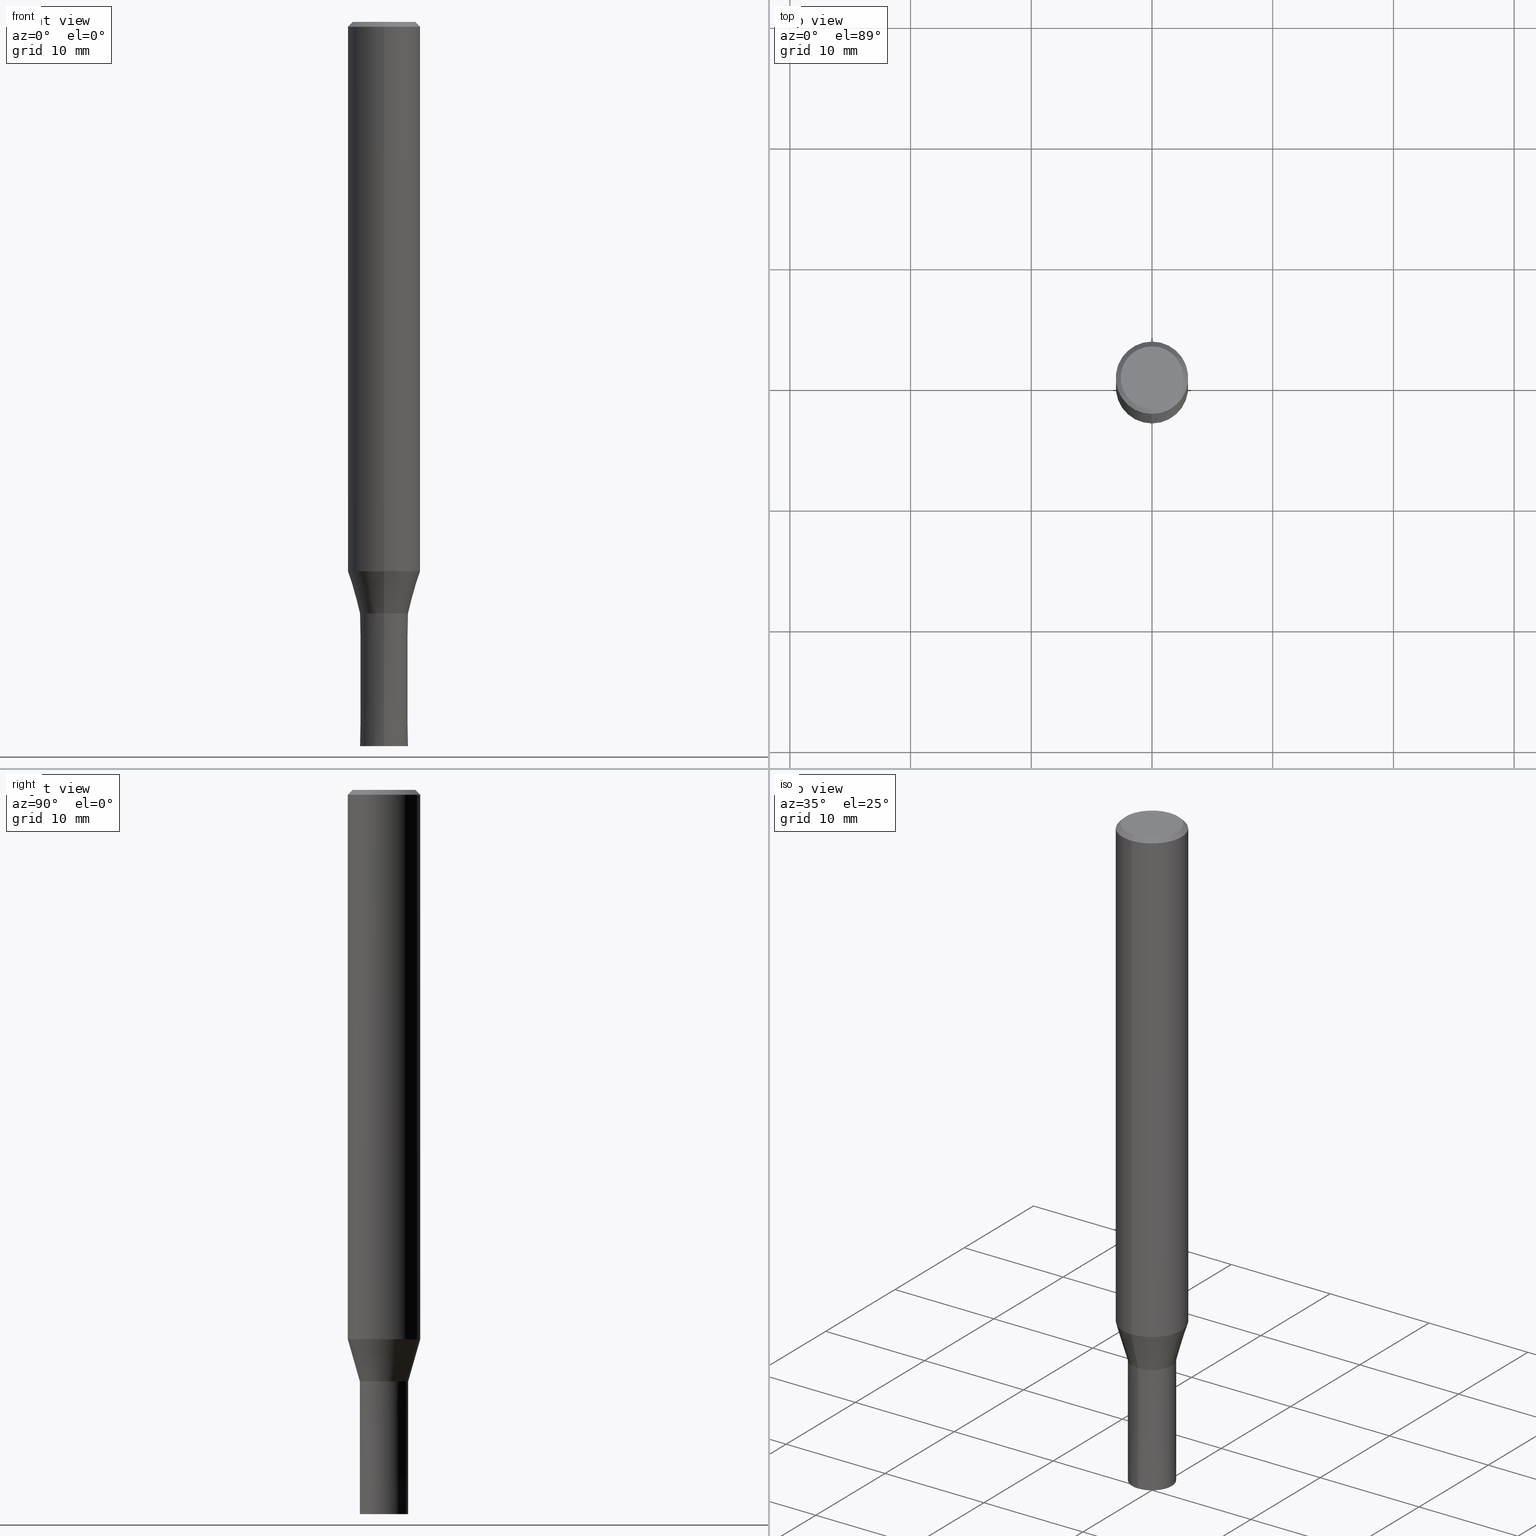
[diagram: canonical four-view strip — front | top / right | iso, engineering-drawing reading convention]
A machine part, canonical four-view strip (front | top / right | iso — engineering-drawing reading convention). The complete STEP part file that produces these views, byte-faithful:
ISO-10303-21;
HEADER;
FILE_DESCRIPTION(('no description'),'unknown implementation level');
FILE_NAME('CZS4040-1100-Huellk.stp','  ',('CIMSOURCE GmbH'),('CADClick - KiM GmbH - www.kimweb.de'),'unknown preprocess','ACIS','unknown authorization');
FILE_SCHEMA(('automotive_design'));
ENDSEC;
DATA;
#1=MECHANICAL_DESIGN_GEOMETRIC_PRESENTATION_REPRESENTATION(' ',(#14,#15,#16,#17,#18,#19,#20,#21,#22,#23,#24,#25,#26,#27,#28,#29,#30,#31,#32,#33,#34,#35,#36,#37,#38,#39,#40,#41,#42,#43,#44,#45,#46,#47,#48,#49,#50,#51,#52,#53,#54,#55,#56,#57,#58,#59,#60,#61,#62,#63,#64),#10);
#2=PRODUCT_DEFINITION_CONTEXT('',#65,'design');
#3=APPLICATION_PROTOCOL_DEFINITION('INTERNATIONAL STANDARD','automotive_design',1994,#65);
#4=PRODUCT_CATEGORY_RELATIONSHIP('NONE','NONE',#66,#67);
#5=SHAPE_DEFINITION_REPRESENTATION(#68,#69);
#6=PRODUCT_DEFINITION_CONTEXT('',#70,'design');
#7=APPLICATION_PROTOCOL_DEFINITION('INTERNATIONAL STANDARD','automotive_design',1994,#70);
#8=PRODUCT_CATEGORY_RELATIONSHIP('NONE','NONE',#71,#72);
#9=SHAPE_DEFINITION_REPRESENTATION(#73,#74);
#10= (GEOMETRIC_REPRESENTATION_CONTEXT(3)GLOBAL_UNCERTAINTY_ASSIGNED_CONTEXT((#77))GLOBAL_UNIT_ASSIGNED_CONTEXT((#79,#80,#81))REPRESENTATION_CONTEXT('NONE','WORKSPACE'));
#14=STYLED_ITEM('',(#83),#84);
#15=STYLED_ITEM('',(#85),#86);
#16=STYLED_ITEM('',(#87),#88);
#17=STYLED_ITEM('',(#89),#90);
#18=STYLED_ITEM('',(#91),#92);
#19=STYLED_ITEM('',(#93),#94);
#20=STYLED_ITEM('',(#95),#96);
#21=STYLED_ITEM('',(#97),#98);
#22=STYLED_ITEM('',(#99),#100);
#23=STYLED_ITEM('',(#101),#102);
#24=STYLED_ITEM('',(#103),#104);
#25=STYLED_ITEM('',(#105),#106);
#26=STYLED_ITEM('',(#107),#108);
#27=STYLED_ITEM('',(#109),#110);
#28=STYLED_ITEM('',(#111),#112);
#29=STYLED_ITEM('',(#113),#114);
#30=STYLED_ITEM('',(#115),#116);
#31=STYLED_ITEM('',(#117),#118);
#32=STYLED_ITEM('',(#119),#120);
#33=STYLED_ITEM('',(#121),#122);
#34=STYLED_ITEM('',(#123),#124);
#35=STYLED_ITEM('',(#125),#126);
#36=STYLED_ITEM('',(#127),#128);
#37=STYLED_ITEM('',(#129),#130);
#38=STYLED_ITEM('',(#131),#132);
#39=STYLED_ITEM('',(#133),#134);
#40=STYLED_ITEM('',(#135),#136);
#41=STYLED_ITEM('',(#137),#138);
#42=STYLED_ITEM('',(#139),#140);
#43=STYLED_ITEM('',(#141),#142);
#44=STYLED_ITEM('',(#143),#144);
#45=STYLED_ITEM('',(#145),#146);
#46=STYLED_ITEM('',(#147),#148);
#47=STYLED_ITEM('',(#149),#150);
#48=STYLED_ITEM('',(#151),#152);
#49=STYLED_ITEM('',(#153),#154);
#50=STYLED_ITEM('',(#155),#156);
#51=STYLED_ITEM('',(#157),#158);
#52=STYLED_ITEM('',(#159),#160);
#53=STYLED_ITEM('',(#161),#162);
#54=STYLED_ITEM('',(#163),#164);
#55=STYLED_ITEM('',(#165),#166);
#56=STYLED_ITEM('',(#167),#168);
#57=STYLED_ITEM('',(#169),#170);
#58=STYLED_ITEM('',(#171),#172);
#59=STYLED_ITEM('',(#173),#174);
#60=STYLED_ITEM('',(#175),#176);
#61=STYLED_ITEM('',(#177),#178);
#62=STYLED_ITEM('',(#179),#180);
#63=STYLED_ITEM('',(#181),#182);
#64=STYLED_ITEM('',(#183),#184);
#65=APPLICATION_CONTEXT(' ');
#66=PRODUCT_CATEGORY('part','NONE');
#67=PRODUCT_RELATED_PRODUCT_CATEGORY('detail',' ',(#185));
#68=PRODUCT_DEFINITION_SHAPE('NONE','NONE',#186);
#69=ADVANCED_BREP_SHAPE_REPRESENTATION('1',(#110,#187),#10);
#70=APPLICATION_CONTEXT(' ');
#71=PRODUCT_CATEGORY('part','NONE');
#72=PRODUCT_RELATED_PRODUCT_CATEGORY('detail',' ',(#188));
#73=PRODUCT_DEFINITION_SHAPE('NONE','NONE',#189);
#74=ADVANCED_BREP_SHAPE_REPRESENTATION('2',(#158,#190),#10);
#77=UNCERTAINTY_MEASURE_WITH_UNIT(LENGTH_MEASURE(1.0E-006),#79,'','');
#79= (CONVERSION_BASED_UNIT('MILLIMETRE',#193)LENGTH_UNIT()NAMED_UNIT(#196));
#80= (NAMED_UNIT(#198)PLANE_ANGLE_UNIT()SI_UNIT($,.RADIAN.));
#81= (NAMED_UNIT(#198)SOLID_ANGLE_UNIT()SI_UNIT($,.STERADIAN.));
#83=PRESENTATION_STYLE_ASSIGNMENT((#204));
#84=EDGE_CURVE('',#160,#154,#205,.T.);
#85=PRESENTATION_STYLE_ASSIGNMENT((#206));
#86=EDGE_CURVE('',#154,#90,#207,.T.);
#87=PRESENTATION_STYLE_ASSIGNMENT((#208));
#88=ADVANCED_FACE('',(#209),#210,.T.);
#89=PRESENTATION_STYLE_ASSIGNMENT((#211));
#90=VERTEX_POINT('',#212);
#91=PRESENTATION_STYLE_ASSIGNMENT((#213));
#92=VERTEX_POINT('',#214);
#93=PRESENTATION_STYLE_ASSIGNMENT((#215));
#94=ADVANCED_FACE('',(#216),#217,.T.);
#95=PRESENTATION_STYLE_ASSIGNMENT((#218));
#96=EDGE_CURVE('',#178,#134,#219,.T.);
#97=PRESENTATION_STYLE_ASSIGNMENT((#220));
#98=ADVANCED_FACE('',(#221),#222,.T.);
#99=PRESENTATION_STYLE_ASSIGNMENT((#223));
#100=EDGE_CURVE('',#108,#124,#224,.T.);
#101=PRESENTATION_STYLE_ASSIGNMENT((#225));
#102=ADVANCED_FACE('',(#226),#227,.T.);
#103=PRESENTATION_STYLE_ASSIGNMENT((#228));
#104=ADVANCED_FACE('',(#229,#230),#231,.T.);
#105=PRESENTATION_STYLE_ASSIGNMENT((#232));
#106=EDGE_CURVE('',#178,#124,#233,.T.);
#107=PRESENTATION_STYLE_ASSIGNMENT((#234));
#108=VERTEX_POINT('',#235);
#109=PRESENTATION_STYLE_ASSIGNMENT((#236));
#110=MANIFOLD_SOLID_BREP('1',#237);
#111=PRESENTATION_STYLE_ASSIGNMENT((#238));
#112=EDGE_CURVE('',#154,#160,#239,.T.);
#113=PRESENTATION_STYLE_ASSIGNMENT((#240));
#114=ADVANCED_FACE('',(#241),#242,.T.);
#115=PRESENTATION_STYLE_ASSIGNMENT((#243));
#116=EDGE_CURVE('',#138,#152,#244,.T.);
#117=PRESENTATION_STYLE_ASSIGNMENT((#245));
#118=EDGE_CURVE('',#92,#90,#246,.T.);
#119=PRESENTATION_STYLE_ASSIGNMENT((#247));
#120=EDGE_CURVE('',#140,#142,#248,.T.);
#121=PRESENTATION_STYLE_ASSIGNMENT((#249));
#122=VERTEX_POINT('',#250);
#123=PRESENTATION_STYLE_ASSIGNMENT((#251));
#124=VERTEX_POINT('',#252);
#125=PRESENTATION_STYLE_ASSIGNMENT((#253));
#126=EDGE_CURVE('',#122,#138,#254,.T.);
#127=PRESENTATION_STYLE_ASSIGNMENT((#255));
#128=ADVANCED_FACE('',(#256),#257,.T.);
#129=PRESENTATION_STYLE_ASSIGNMENT((#258));
#130=EDGE_CURVE('',#124,#178,#259,.T.);
#131=PRESENTATION_STYLE_ASSIGNMENT((#260));
#132=EDGE_CURVE('',#162,#122,#261,.T.);
#133=PRESENTATION_STYLE_ASSIGNMENT((#262));
#134=VERTEX_POINT('',#263);
#135=PRESENTATION_STYLE_ASSIGNMENT((#264));
#136=EDGE_CURVE('',#142,#140,#265,.T.);
#137=PRESENTATION_STYLE_ASSIGNMENT((#266));
#138=VERTEX_POINT('',#267);
#139=PRESENTATION_STYLE_ASSIGNMENT((#268));
#140=VERTEX_POINT('',#269);
#141=PRESENTATION_STYLE_ASSIGNMENT((#270));
#142=VERTEX_POINT('',#271);
#143=PRESENTATION_STYLE_ASSIGNMENT((#272));
#144=EDGE_CURVE('',#152,#142,#273,.T.);
#145=PRESENTATION_STYLE_ASSIGNMENT((#274));
#146=EDGE_CURVE('',#152,#162,#275,.T.);
#147=PRESENTATION_STYLE_ASSIGNMENT((#276));
#148=ADVANCED_FACE('',(#277),#278,.T.);
#149=PRESENTATION_STYLE_ASSIGNMENT((#279));
#150=EDGE_CURVE('',#92,#160,#280,.T.);
#151=PRESENTATION_STYLE_ASSIGNMENT((#281));
#152=VERTEX_POINT('',#282);
#153=PRESENTATION_STYLE_ASSIGNMENT((#283));
#154=VERTEX_POINT('',#284);
#155=PRESENTATION_STYLE_ASSIGNMENT((#285));
#156=EDGE_CURVE('',#90,#92,#286,.T.);
#157=PRESENTATION_STYLE_ASSIGNMENT((#287));
#158=MANIFOLD_SOLID_BREP('2',#288);
#159=PRESENTATION_STYLE_ASSIGNMENT((#289));
#160=VERTEX_POINT('',#290);
#161=PRESENTATION_STYLE_ASSIGNMENT((#291));
#162=VERTEX_POINT('',#292);
#163=PRESENTATION_STYLE_ASSIGNMENT((#293));
#164=ADVANCED_FACE('',(#294),#295,.T.);
#165=PRESENTATION_STYLE_ASSIGNMENT((#296));
#166=EDGE_CURVE('',#162,#152,#297,.T.);
#167=PRESENTATION_STYLE_ASSIGNMENT((#298));
#168=ADVANCED_FACE('',(#299),#300,.T.);
#169=PRESENTATION_STYLE_ASSIGNMENT((#301));
#170=EDGE_CURVE('',#138,#122,#302,.T.);
#171=PRESENTATION_STYLE_ASSIGNMENT((#303));
#172=ADVANCED_FACE('',(#304),#305,.T.);
#173=PRESENTATION_STYLE_ASSIGNMENT((#306));
#174=ADVANCED_FACE('',(#307),#308,.T.);
#175=PRESENTATION_STYLE_ASSIGNMENT((#309));
#176=ADVANCED_FACE('',(#310),#311,.T.);
#177=PRESENTATION_STYLE_ASSIGNMENT((#312));
#178=VERTEX_POINT('',#313);
#179=PRESENTATION_STYLE_ASSIGNMENT((#314));
#180=EDGE_CURVE('',#134,#108,#315,.T.);
#181=PRESENTATION_STYLE_ASSIGNMENT((#316));
#182=EDGE_CURVE('',#140,#162,#317,.T.);
#183=PRESENTATION_STYLE_ASSIGNMENT((#318));
#184=EDGE_CURVE('',#108,#134,#319,.T.);
#185=PRODUCT('1','1','PART-1-DESC',(#320));
#186=PRODUCT_DEFINITION('NONE','NONE',#321,#2);
#187=AXIS2_PLACEMENT_3D('',#322,#323,#324);
#188=PRODUCT('2','2','PART-2-DESC',(#325));
#189=PRODUCT_DEFINITION('NONE','NONE',#326,#6);
#190=AXIS2_PLACEMENT_3D('',#327,#328,#329);
#193=LENGTH_MEASURE_WITH_UNIT(LENGTH_MEASURE(1.0),#330);
#196=DIMENSIONAL_EXPONENTS(1.0,0.0,0.0,0.0,0.0,0.0,0.0);
#198=DIMENSIONAL_EXPONENTS(0.0,0.0,0.0,0.0,0.0,0.0,0.0);
#204=CURVE_STYLE('',#331,POSITIVE_LENGTH_MEASURE(1.0E-006),#332);
#205=CIRCLE('',#333,1.9999);
#206=CURVE_STYLE('',#334,POSITIVE_LENGTH_MEASURE(1.0E-006),#335);
#207=LINE('',#336,#337);
#208=SURFACE_STYLE_USAGE(.BOTH.,#338);
#209=FACE_OUTER_BOUND('',#339,.T.);
#210=CONICAL_SURFACE('',#340,2.49995,0.279284171542493);
#211=POINT_STYLE(' ',#341,POSITIVE_LENGTH_MEASURE(1.0E-006),#342);
#212=CARTESIAN_POINT('',(0.0,2.0,-60.0));
#213=POINT_STYLE(' ',#343,POSITIVE_LENGTH_MEASURE(1.0E-006),#344);
#214=CARTESIAN_POINT('',(2.44921270764475E-016,-2.0,-60.0));
#215=SURFACE_STYLE_USAGE(.BOTH.,#345);
#216=FACE_OUTER_BOUND('',#346,.T.);
#217=CONICAL_SURFACE('',#347,2.49995,0.279284171542493);
#218=CURVE_STYLE('',#348,POSITIVE_LENGTH_MEASURE(1.0E-006),#349);
#219=LINE('',#350,#351);
#220=SURFACE_STYLE_USAGE(.BOTH.,#352);
#221=FACE_OUTER_BOUND('',#353,.T.);
#222=CYLINDRICAL_SURFACE('',#354,3.0);
#223=CURVE_STYLE('',#355,POSITIVE_LENGTH_MEASURE(1.0E-006),#356);
#224=LINE('',#357,#358);
#225=SURFACE_STYLE_USAGE(.BOTH.,#359);
#226=FACE_OUTER_BOUND('',#360,.T.);
#227=CYLINDRICAL_SURFACE('',#361,3.0);
#228=SURFACE_STYLE_USAGE(.BOTH.,#362);
#229=FACE_OUTER_BOUND('',#363,.T.);
#230=FACE_BOUND('',#364,.T.);
#231=PLANE('',#365);
#232=CURVE_STYLE('',#366,POSITIVE_LENGTH_MEASURE(1.0E-006),#367);
#233=CIRCLE('',#368,2.99995);
#234=POINT_STYLE(' ',#369,POSITIVE_LENGTH_MEASURE(1.0E-006),#370);
#235=CARTESIAN_POINT('',(2.44915147732706E-016,-1.99995,-49.0));
#236=SURFACE_STYLE_USAGE(.BOTH.,#371);
#237=CLOSED_SHELL('',(#88,#102,#114,#104,#168,#174,#98,#94,#176));
#238=CURVE_STYLE('',#372,POSITIVE_LENGTH_MEASURE(1.0E-006),#373);
#239=CIRCLE('',#374,1.9999);
#240=SURFACE_STYLE_USAGE(.BOTH.,#375);
#241=FACE_OUTER_BOUND('',#376,.T.);
#242=CONICAL_SURFACE('',#377,2.8,0.78539816339745);
#243=CURVE_STYLE('',#378,POSITIVE_LENGTH_MEASURE(1.0E-006),#379);
#244=LINE('',#380,#381);
#245=CURVE_STYLE('',#382,POSITIVE_LENGTH_MEASURE(1.0E-006),#383);
#246=CIRCLE('',#384,2.0);
#247=CURVE_STYLE('',#385,POSITIVE_LENGTH_MEASURE(1.0E-006),#386);
#248=CIRCLE('',#387,2.6);
#249=POINT_STYLE(' ',#388,POSITIVE_LENGTH_MEASURE(1.0E-006),#389);
#250=CARTESIAN_POINT('',(0.0,3.0,-45.513));
#251=POINT_STYLE(' ',#390,POSITIVE_LENGTH_MEASURE(1.0E-006),#391);
#252=CARTESIAN_POINT('',(3.67375783114944E-016,-2.99995,-45.513));
#253=CURVE_STYLE('',#392,POSITIVE_LENGTH_MEASURE(1.0E-006),#393);
#254=CIRCLE('',#394,3.0);
#255=SURFACE_STYLE_USAGE(.BOTH.,#395);
#256=FACE_OUTER_BOUND('',#396,.T.);
#257=CONICAL_SURFACE('',#397,1.99995,9.09090909065765E-006);
#258=CURVE_STYLE('',#398,POSITIVE_LENGTH_MEASURE(1.0E-006),#399);
#259=CIRCLE('',#400,2.99995);
#260=CURVE_STYLE('',#401,POSITIVE_LENGTH_MEASURE(1.0E-006),#402);
#261=LINE('',#403,#404);
#262=POINT_STYLE(' ',#405,POSITIVE_LENGTH_MEASURE(1.0E-006),#406);
#263=CARTESIAN_POINT('',(0.0,1.99995,-49.0));
#264=CURVE_STYLE('',#407,POSITIVE_LENGTH_MEASURE(1.0E-006),#408);
#265=CIRCLE('',#409,2.6);
#266=POINT_STYLE(' ',#410,POSITIVE_LENGTH_MEASURE(1.0E-006),#411);
#267=CARTESIAN_POINT('',(3.67381906146713E-016,-3.0,-45.513));
#268=POINT_STYLE(' ',#412,POSITIVE_LENGTH_MEASURE(1.0E-006),#413);
#269=CARTESIAN_POINT('',(0.0,2.6,0.0));
#270=POINT_STYLE(' ',#414,POSITIVE_LENGTH_MEASURE(1.0E-006),#415);
#271=CARTESIAN_POINT('',(3.18397651993818E-016,-2.6,0.0));
#272=CURVE_STYLE('',#416,POSITIVE_LENGTH_MEASURE(1.0E-006),#417);
#273=LINE('',#418,#419);
#274=CURVE_STYLE('',#420,POSITIVE_LENGTH_MEASURE(1.0E-006),#421);
#275=CIRCLE('',#422,3.0);
#276=SURFACE_STYLE_USAGE(.BOTH.,#423);
#277=FACE_OUTER_BOUND('',#424,.T.);
#278=PLANE('',#425);
#279=CURVE_STYLE('',#426,POSITIVE_LENGTH_MEASURE(1.0E-006),#427);
#280=LINE('',#428,#429);
#281=POINT_STYLE(' ',#430,POSITIVE_LENGTH_MEASURE(1.0E-006),#431);
#282=CARTESIAN_POINT('',(3.67381906146713E-016,-3.0,-0.399999999999999));
#283=POINT_STYLE(' ',#432,POSITIVE_LENGTH_MEASURE(1.0E-006),#433);
#284=CARTESIAN_POINT('',(0.0,1.9999,-49.0));
#285=CURVE_STYLE('',#434,POSITIVE_LENGTH_MEASURE(1.0E-006),#435);
#286=CIRCLE('',#436,2.0);
#287=SURFACE_STYLE_USAGE(.BOTH.,#437);
#288=CLOSED_SHELL('',(#172,#148,#128,#164));
#289=POINT_STYLE(' ',#438,POSITIVE_LENGTH_MEASURE(1.0E-006),#439);
#290=CARTESIAN_POINT('',(2.44909024700937E-016,-1.9999,-49.0));
#291=POINT_STYLE(' ',#440,POSITIVE_LENGTH_MEASURE(1.0E-006),#441);
#292=CARTESIAN_POINT('',(0.0,3.0,-0.399999999999999));
#293=SURFACE_STYLE_USAGE(.BOTH.,#442);
#294=FACE_OUTER_BOUND('',#443,.T.);
#295=PLANE('',#444);
#296=CURVE_STYLE('',#445,POSITIVE_LENGTH_MEASURE(1.0E-006),#446);
#297=CIRCLE('',#447,3.0);
#298=SURFACE_STYLE_USAGE(.BOTH.,#448);
#299=FACE_OUTER_BOUND('',#449,.T.);
#300=PLANE('',#450);
#301=CURVE_STYLE('',#451,POSITIVE_LENGTH_MEASURE(1.0E-006),#452);
#302=CIRCLE('',#453,3.0);
#303=SURFACE_STYLE_USAGE(.BOTH.,#454);
#304=FACE_OUTER_BOUND('',#455,.T.);
#305=CONICAL_SURFACE('',#456,1.99995,9.09090909065765E-006);
#306=SURFACE_STYLE_USAGE(.BOTH.,#457);
#307=FACE_OUTER_BOUND('',#458,.T.);
#308=CONICAL_SURFACE('',#459,2.8,0.78539816339745);
#309=SURFACE_STYLE_USAGE(.BOTH.,#460);
#310=FACE_OUTER_BOUND('',#461,.T.);
#311=PLANE('',#462);
#312=POINT_STYLE(' ',#463,POSITIVE_LENGTH_MEASURE(1.0E-006),#464);
#313=CARTESIAN_POINT('',(0.0,2.99995,-45.513));
#314=CURVE_STYLE('',#465,POSITIVE_LENGTH_MEASURE(1.0E-006),#466);
#315=CIRCLE('',#467,1.99995);
#316=CURVE_STYLE('',#468,POSITIVE_LENGTH_MEASURE(1.0E-006),#469);
#317=LINE('',#470,#471);
#318=CURVE_STYLE('',#472,POSITIVE_LENGTH_MEASURE(1.0E-006),#473);
#319=CIRCLE('',#474,1.99995);
#320=PRODUCT_CONTEXT('',#65,'mechanical');
#321=PRODUCT_DEFINITION_FORMATION_WITH_SPECIFIED_SOURCE(' ','NONE',#185,.NOT_KNOWN.);
#322=CARTESIAN_POINT('',(0.0,0.0,0.0));
#323=DIRECTION('',(0.0,0.0,1.0));
#324=DIRECTION('',(1.0,0.0,0.0));
#325=PRODUCT_CONTEXT('',#70,'mechanical');
#326=PRODUCT_DEFINITION_FORMATION_WITH_SPECIFIED_SOURCE(' ','NONE',#188,.NOT_KNOWN.);
#327=CARTESIAN_POINT('',(0.0,0.0,0.0));
#328=DIRECTION('',(0.0,0.0,1.0));
#329=DIRECTION('',(1.0,0.0,0.0));
#330= (NAMED_UNIT(#196)LENGTH_UNIT()SI_UNIT(.MILLI.,.METRE.));
#331=DRAUGHTING_PRE_DEFINED_CURVE_FONT('continuous');
#332=COLOUR_RGB('',0.800000011920929,0.800000011920929,0.800000011920929);
#333=AXIS2_PLACEMENT_3D('',#476,#477,#478);
#334=DRAUGHTING_PRE_DEFINED_CURVE_FONT('continuous');
#335=COLOUR_RGB('',0.800000011920929,0.800000011920929,0.800000011920929);
#336=CARTESIAN_POINT('',(-2.44915147732706E-016,1.99995,-54.5));
#337=VECTOR('',#479,1.0);
#338=SURFACE_SIDE_STYLE('',(#480));
#339=EDGE_LOOP('',(#481,#482,#483,#484));
#340=AXIS2_PLACEMENT_3D('',#485,#486,#487);
#341=PRE_DEFINED_MARKER('');
#342=COLOUR_RGB('',0.800000011920929,0.800000011920929,0.800000011920929);
#343=PRE_DEFINED_MARKER('');
#344=COLOUR_RGB('',0.800000011920929,0.800000011920929,0.800000011920929);
#345=SURFACE_SIDE_STYLE('',(#488));
#346=EDGE_LOOP('',(#489,#490,#491,#492));
#347=AXIS2_PLACEMENT_3D('',#493,#494,#495);
#348=DRAUGHTING_PRE_DEFINED_CURVE_FONT('continuous');
#349=COLOUR_RGB('',0.498039215803146,0.498039215803146,0.498039215803146);
#350=CARTESIAN_POINT('',(-3.06145465423825E-016,2.49995,-47.2565));
#351=VECTOR('',#496,1.0);
#352=SURFACE_SIDE_STYLE('',(#497));
#353=EDGE_LOOP('',(#498,#499,#500,#501));
#354=AXIS2_PLACEMENT_3D('',#502,#503,#504);
#355=DRAUGHTING_PRE_DEFINED_CURVE_FONT('continuous');
#356=COLOUR_RGB('',0.498039215803146,0.498039215803146,0.498039215803146);
#357=CARTESIAN_POINT('',(3.06145465423825E-016,-2.49995,-47.2565));
#358=VECTOR('',#505,1.0);
#359=SURFACE_SIDE_STYLE('',(#506));
#360=EDGE_LOOP('',(#507,#508,#509,#510));
#361=AXIS2_PLACEMENT_3D('',#511,#512,#513);
#362=SURFACE_SIDE_STYLE('',(#514));
#363=EDGE_LOOP('',(#515,#516));
#364=EDGE_LOOP('',(#517,#518));
#365=AXIS2_PLACEMENT_3D('',#519,#520,#521);
#366=DRAUGHTING_PRE_DEFINED_CURVE_FONT('continuous');
#367=COLOUR_RGB('',0.498039215803146,0.498039215803146,0.498039215803146);
#368=AXIS2_PLACEMENT_3D('',#522,#523,#524);
#369=PRE_DEFINED_MARKER('');
#370=COLOUR_RGB('',0.498039215803146,0.498039215803146,0.498039215803146);
#371=SURFACE_SIDE_STYLE('',(#525));
#372=DRAUGHTING_PRE_DEFINED_CURVE_FONT('continuous');
#373=COLOUR_RGB('',0.800000011920929,0.800000011920929,0.800000011920929);
#374=AXIS2_PLACEMENT_3D('',#526,#527,#528);
#375=SURFACE_SIDE_STYLE('',(#529));
#376=EDGE_LOOP('',(#530,#531,#532,#533));
#377=AXIS2_PLACEMENT_3D('',#534,#535,#536);
#378=DRAUGHTING_PRE_DEFINED_CURVE_FONT('continuous');
#379=COLOUR_RGB('',0.498039215803146,0.498039215803146,0.498039215803146);
#380=CARTESIAN_POINT('',(3.67381906146713E-016,-3.0,-22.9565));
#381=VECTOR('',#537,1.0);
#382=DRAUGHTING_PRE_DEFINED_CURVE_FONT('continuous');
#383=COLOUR_RGB('',0.800000011920929,0.800000011920929,0.800000011920929);
#384=AXIS2_PLACEMENT_3D('',#538,#539,#540);
#385=DRAUGHTING_PRE_DEFINED_CURVE_FONT('continuous');
#386=COLOUR_RGB('',0.498039215803146,0.498039215803146,0.498039215803146);
#387=AXIS2_PLACEMENT_3D('',#541,#542,#543);
#388=PRE_DEFINED_MARKER('');
#389=COLOUR_RGB('',0.498039215803146,0.498039215803146,0.498039215803146);
#390=PRE_DEFINED_MARKER('');
#391=COLOUR_RGB('',0.498039215803146,0.498039215803146,0.498039215803146);
#392=DRAUGHTING_PRE_DEFINED_CURVE_FONT('continuous');
#393=COLOUR_RGB('',0.498039215803146,0.498039215803146,0.498039215803146);
#394=AXIS2_PLACEMENT_3D('',#544,#545,#546);
#395=SURFACE_SIDE_STYLE('',(#547));
#396=EDGE_LOOP('',(#548,#549,#550,#551));
#397=AXIS2_PLACEMENT_3D('',#552,#553,#554);
#398=DRAUGHTING_PRE_DEFINED_CURVE_FONT('continuous');
#399=COLOUR_RGB('',0.498039215803146,0.498039215803146,0.498039215803146);
#400=AXIS2_PLACEMENT_3D('',#555,#556,#557);
#401=DRAUGHTING_PRE_DEFINED_CURVE_FONT('continuous');
#402=COLOUR_RGB('',0.498039215803146,0.498039215803146,0.498039215803146);
#403=CARTESIAN_POINT('',(-3.67381906146713E-016,3.0,-22.9565));
#404=VECTOR('',#558,1.0);
#405=PRE_DEFINED_MARKER('');
#406=COLOUR_RGB('',0.498039215803146,0.498039215803146,0.498039215803146);
#407=DRAUGHTING_PRE_DEFINED_CURVE_FONT('continuous');
#408=COLOUR_RGB('',0.498039215803146,0.498039215803146,0.498039215803146);
#409=AXIS2_PLACEMENT_3D('',#559,#560,#561);
#410=PRE_DEFINED_MARKER('');
#411=COLOUR_RGB('',0.498039215803146,0.498039215803146,0.498039215803146);
#412=PRE_DEFINED_MARKER('');
#413=COLOUR_RGB('',0.498039215803146,0.498039215803146,0.498039215803146);
#414=PRE_DEFINED_MARKER('');
#415=COLOUR_RGB('',0.498039215803146,0.498039215803146,0.498039215803146);
#416=DRAUGHTING_PRE_DEFINED_CURVE_FONT('continuous');
#417=COLOUR_RGB('',0.498039215803146,0.498039215803146,0.498039215803146);
#418=CARTESIAN_POINT('',(3.42889779070266E-016,-2.8,-0.199999999999996));
#419=VECTOR('',#562,1.0);
#420=DRAUGHTING_PRE_DEFINED_CURVE_FONT('continuous');
#421=COLOUR_RGB('',0.498039215803146,0.498039215803146,0.498039215803146);
#422=AXIS2_PLACEMENT_3D('',#563,#564,#565);
#423=SURFACE_SIDE_STYLE('',(#566));
#424=EDGE_LOOP('',(#567,#568));
#425=AXIS2_PLACEMENT_3D('',#569,#570,#571);
#426=DRAUGHTING_PRE_DEFINED_CURVE_FONT('continuous');
#427=COLOUR_RGB('',0.800000011920929,0.800000011920929,0.800000011920929);
#428=CARTESIAN_POINT('',(2.44915147732706E-016,-1.99995,-54.5));
#429=VECTOR('',#572,1.0);
#430=PRE_DEFINED_MARKER('');
#431=COLOUR_RGB('',0.498039215803146,0.498039215803146,0.498039215803146);
#432=PRE_DEFINED_MARKER('');
#433=COLOUR_RGB('',0.800000011920929,0.800000011920929,0.800000011920929);
#434=DRAUGHTING_PRE_DEFINED_CURVE_FONT('continuous');
#435=COLOUR_RGB('',0.800000011920929,0.800000011920929,0.800000011920929);
#436=AXIS2_PLACEMENT_3D('',#573,#574,#575);
#437=SURFACE_SIDE_STYLE('',(#576));
#438=PRE_DEFINED_MARKER('');
#439=COLOUR_RGB('',0.800000011920929,0.800000011920929,0.800000011920929);
#440=PRE_DEFINED_MARKER('');
#441=COLOUR_RGB('',0.498039215803146,0.498039215803146,0.498039215803146);
#442=SURFACE_SIDE_STYLE('',(#577));
#443=EDGE_LOOP('',(#578,#579));
#444=AXIS2_PLACEMENT_3D('',#580,#581,#582);
#445=DRAUGHTING_PRE_DEFINED_CURVE_FONT('continuous');
#446=COLOUR_RGB('',0.498039215803146,0.498039215803146,0.498039215803146);
#447=AXIS2_PLACEMENT_3D('',#583,#584,#585);
#448=SURFACE_SIDE_STYLE('',(#586));
#449=EDGE_LOOP('',(#587,#588));
#450=AXIS2_PLACEMENT_3D('',#589,#590,#591);
#451=DRAUGHTING_PRE_DEFINED_CURVE_FONT('continuous');
#452=COLOUR_RGB('',0.498039215803146,0.498039215803146,0.498039215803146);
#453=AXIS2_PLACEMENT_3D('',#592,#593,#594);
#454=SURFACE_SIDE_STYLE('',(#595));
#455=EDGE_LOOP('',(#596,#597,#598,#599));
#456=AXIS2_PLACEMENT_3D('',#600,#601,#602);
#457=SURFACE_SIDE_STYLE('',(#603));
#458=EDGE_LOOP('',(#604,#605,#606,#607));
#459=AXIS2_PLACEMENT_3D('',#608,#609,#610);
#460=SURFACE_SIDE_STYLE('',(#611));
#461=EDGE_LOOP('',(#612,#613));
#462=AXIS2_PLACEMENT_3D('',#614,#615,#616);
#463=PRE_DEFINED_MARKER('');
#464=COLOUR_RGB('',0.498039215803146,0.498039215803146,0.498039215803146);
#465=DRAUGHTING_PRE_DEFINED_CURVE_FONT('continuous');
#466=COLOUR_RGB('',0.498039215803146,0.498039215803146,0.498039215803146);
#467=AXIS2_PLACEMENT_3D('',#617,#618,#619);
#468=DRAUGHTING_PRE_DEFINED_CURVE_FONT('continuous');
#469=COLOUR_RGB('',0.498039215803146,0.498039215803146,0.498039215803146);
#470=CARTESIAN_POINT('',(-3.42889779070266E-016,2.8,-0.199999999999996));
#471=VECTOR('',#620,1.0);
#472=DRAUGHTING_PRE_DEFINED_CURVE_FONT('continuous');
#473=COLOUR_RGB('',0.498039215803146,0.498039215803146,0.498039215803146);
#474=AXIS2_PLACEMENT_3D('',#621,#622,#623);
#476=CARTESIAN_POINT('',(0.0,0.0,-49.0));
#477=DIRECTION('',(0.0,0.0,-1.0));
#478=DIRECTION('',(0.0,1.0,0.0));
#479=DIRECTION('',(-1.11327850342876E-021,9.09090909053243E-006,-0.999999999958678));
#480=SURFACE_STYLE_FILL_AREA(#624);
#481=ORIENTED_EDGE('',*,*,#96,.F.);
#482=ORIENTED_EDGE('',*,*,#106,.T.);
#483=ORIENTED_EDGE('',*,*,#100,.F.);
#484=ORIENTED_EDGE('',*,*,#180,.F.);
#485=CARTESIAN_POINT('',(0.0,0.0,-47.2565));
#486=DIRECTION('',(-0.0,-0.0,1.0));
#487=DIRECTION('',(0.0,1.0,0.0));
#488=SURFACE_STYLE_FILL_AREA(#625);
#489=ORIENTED_EDGE('',*,*,#96,.T.);
#490=ORIENTED_EDGE('',*,*,#184,.F.);
#491=ORIENTED_EDGE('',*,*,#100,.T.);
#492=ORIENTED_EDGE('',*,*,#130,.T.);
#493=CARTESIAN_POINT('',(0.0,0.0,-47.2565));
#494=DIRECTION('',(-0.0,-0.0,1.0));
#495=DIRECTION('',(0.0,1.0,0.0));
#496=DIRECTION('',(3.3758432755158E-017,-0.275667626987133,-0.961253015304131));
#497=SURFACE_STYLE_FILL_AREA(#626);
#498=ORIENTED_EDGE('',*,*,#132,.T.);
#499=ORIENTED_EDGE('',*,*,#170,.F.);
#500=ORIENTED_EDGE('',*,*,#116,.T.);
#501=ORIENTED_EDGE('',*,*,#146,.T.);
#502=CARTESIAN_POINT('',(0.0,0.0,-22.9565));
#503=DIRECTION('',(-0.0,-0.0,1.0));
#504=DIRECTION('',(0.0,1.0,0.0));
#505=DIRECTION('',(3.3758432755158E-017,-0.275667626987133,0.961253015304131));
#506=SURFACE_STYLE_FILL_AREA(#627);
#507=ORIENTED_EDGE('',*,*,#132,.F.);
#508=ORIENTED_EDGE('',*,*,#166,.T.);
#509=ORIENTED_EDGE('',*,*,#116,.F.);
#510=ORIENTED_EDGE('',*,*,#126,.F.);
#511=CARTESIAN_POINT('',(0.0,0.0,-22.9565));
#512=DIRECTION('',(-0.0,-0.0,1.0));
#513=DIRECTION('',(0.0,1.0,0.0));
#514=SURFACE_STYLE_FILL_AREA(#628);
#515=ORIENTED_EDGE('',*,*,#126,.T.);
#516=ORIENTED_EDGE('',*,*,#170,.T.);
#517=ORIENTED_EDGE('',*,*,#106,.F.);
#518=ORIENTED_EDGE('',*,*,#130,.F.);
#519=CARTESIAN_POINT('',(0.0,1.5,-45.513));
#520=DIRECTION('',(0.0,0.0,-1.0));
#521=DIRECTION('',(0.0,1.0,0.0));
#522=CARTESIAN_POINT('',(0.0,0.0,-45.513));
#523=DIRECTION('',(0.0,0.0,-1.0));
#524=DIRECTION('',(0.0,1.0,0.0));
#525=SURFACE_STYLE_FILL_AREA(#629);
#526=CARTESIAN_POINT('',(0.0,0.0,-49.0));
#527=DIRECTION('',(0.0,0.0,-1.0));
#528=DIRECTION('',(0.0,1.0,0.0));
#529=SURFACE_STYLE_FILL_AREA(#630);
#530=ORIENTED_EDGE('',*,*,#182,.F.);
#531=ORIENTED_EDGE('',*,*,#120,.T.);
#532=ORIENTED_EDGE('',*,*,#144,.F.);
#533=ORIENTED_EDGE('',*,*,#166,.F.);
#534=CARTESIAN_POINT('',(0.0,0.0,-0.199999999999996));
#535=DIRECTION('',(0.0,-0.0,-1.0));
#536=DIRECTION('',(0.0,1.0,0.0));
#537=DIRECTION('',(-0.0,-0.0,1.0));
#538=CARTESIAN_POINT('',(0.0,0.0,-60.0));
#539=DIRECTION('',(0.0,0.0,-1.0));
#540=DIRECTION('',(0.0,1.0,0.0));
#541=CARTESIAN_POINT('',(0.0,0.0,0.0));
#542=DIRECTION('',(0.0,0.0,-1.0));
#543=DIRECTION('',(0.0,1.0,0.0));
#544=CARTESIAN_POINT('',(0.0,0.0,-45.513));
#545=DIRECTION('',(0.0,0.0,-1.0));
#546=DIRECTION('',(0.0,1.0,0.0));
#547=SURFACE_STYLE_FILL_AREA(#631);
#548=ORIENTED_EDGE('',*,*,#86,.T.);
#549=ORIENTED_EDGE('',*,*,#118,.F.);
#550=ORIENTED_EDGE('',*,*,#150,.T.);
#551=ORIENTED_EDGE('',*,*,#84,.T.);
#552=CARTESIAN_POINT('',(0.0,0.0,-54.5));
#553=DIRECTION('',(0.0,-0.0,-1.0));
#554=DIRECTION('',(0.0,1.0,0.0));
#555=CARTESIAN_POINT('',(0.0,0.0,-45.513));
#556=DIRECTION('',(0.0,0.0,-1.0));
#557=DIRECTION('',(0.0,1.0,0.0));
#558=DIRECTION('',(0.0,0.0,-1.0));
#559=CARTESIAN_POINT('',(0.0,0.0,0.0));
#560=DIRECTION('',(0.0,0.0,-1.0));
#561=DIRECTION('',(0.0,1.0,0.0));
#562=DIRECTION('',(-8.65927457071937E-017,0.707106781186549,0.707106781186546));
#563=CARTESIAN_POINT('',(0.0,0.0,-0.399999999999999));
#564=DIRECTION('',(0.0,0.0,-1.0));
#565=DIRECTION('',(0.0,1.0,0.0));
#566=SURFACE_STYLE_FILL_AREA(#632);
#567=ORIENTED_EDGE('',*,*,#112,.F.);
#568=ORIENTED_EDGE('',*,*,#84,.F.);
#569=CARTESIAN_POINT('',(0.0,0.99995,-49.0));
#570=DIRECTION('',(-0.0,0.0,1.0));
#571=DIRECTION('',(0.0,-1.0,0.0));
#572=DIRECTION('',(-1.11327850342876E-021,9.09090909053243E-006,0.999999999958678));
#573=CARTESIAN_POINT('',(0.0,0.0,-60.0));
#574=DIRECTION('',(0.0,0.0,-1.0));
#575=DIRECTION('',(0.0,1.0,0.0));
#576=SURFACE_STYLE_FILL_AREA(#633);
#577=SURFACE_STYLE_FILL_AREA(#634);
#578=ORIENTED_EDGE('',*,*,#156,.T.);
#579=ORIENTED_EDGE('',*,*,#118,.T.);
#580=CARTESIAN_POINT('',(0.0,0.9975,-60.0));
#581=DIRECTION('',(0.0,0.0,-1.0));
#582=DIRECTION('',(0.0,1.0,0.0));
#583=CARTESIAN_POINT('',(0.0,0.0,-0.399999999999999));
#584=DIRECTION('',(0.0,0.0,-1.0));
#585=DIRECTION('',(0.0,1.0,0.0));
#586=SURFACE_STYLE_FILL_AREA(#635);
#587=ORIENTED_EDGE('',*,*,#120,.F.);
#588=ORIENTED_EDGE('',*,*,#136,.F.);
#589=CARTESIAN_POINT('',(0.0,1.3,0.0));
#590=DIRECTION('',(-0.0,0.0,1.0));
#591=DIRECTION('',(0.0,-1.0,0.0));
#592=CARTESIAN_POINT('',(0.0,0.0,-45.513));
#593=DIRECTION('',(0.0,0.0,-1.0));
#594=DIRECTION('',(0.0,1.0,0.0));
#595=SURFACE_STYLE_FILL_AREA(#636);
#596=ORIENTED_EDGE('',*,*,#86,.F.);
#597=ORIENTED_EDGE('',*,*,#112,.T.);
#598=ORIENTED_EDGE('',*,*,#150,.F.);
#599=ORIENTED_EDGE('',*,*,#156,.F.);
#600=CARTESIAN_POINT('',(0.0,0.0,-54.5));
#601=DIRECTION('',(0.0,-0.0,-1.0));
#602=DIRECTION('',(0.0,1.0,0.0));
#603=SURFACE_STYLE_FILL_AREA(#637);
#604=ORIENTED_EDGE('',*,*,#182,.T.);
#605=ORIENTED_EDGE('',*,*,#146,.F.);
#606=ORIENTED_EDGE('',*,*,#144,.T.);
#607=ORIENTED_EDGE('',*,*,#136,.T.);
#608=CARTESIAN_POINT('',(0.0,0.0,-0.199999999999996));
#609=DIRECTION('',(0.0,-0.0,-1.0));
#610=DIRECTION('',(0.0,1.0,0.0));
#611=SURFACE_STYLE_FILL_AREA(#638);
#612=ORIENTED_EDGE('',*,*,#180,.T.);
#613=ORIENTED_EDGE('',*,*,#184,.T.);
#614=CARTESIAN_POINT('',(0.0,0.999975,-49.0));
#615=DIRECTION('',(0.0,0.0,-1.0));
#616=DIRECTION('',(0.0,1.0,0.0));
#617=CARTESIAN_POINT('',(0.0,0.0,-49.0));
#618=DIRECTION('',(0.0,0.0,-1.0));
#619=DIRECTION('',(0.0,1.0,0.0));
#620=DIRECTION('',(-8.65927457071937E-017,0.707106781186549,-0.707106781186546));
#621=CARTESIAN_POINT('',(0.0,0.0,-49.0));
#622=DIRECTION('',(0.0,0.0,-1.0));
#623=DIRECTION('',(0.0,1.0,0.0));
#624=FILL_AREA_STYLE('',(#639));
#625=FILL_AREA_STYLE('',(#640));
#626=FILL_AREA_STYLE('',(#641));
#627=FILL_AREA_STYLE('',(#642));
#628=FILL_AREA_STYLE('',(#643));
#629=FILL_AREA_STYLE('',(#644));
#630=FILL_AREA_STYLE('',(#645));
#631=FILL_AREA_STYLE('',(#646));
#632=FILL_AREA_STYLE('',(#647));
#633=FILL_AREA_STYLE('',(#648));
#634=FILL_AREA_STYLE('',(#649));
#635=FILL_AREA_STYLE('',(#650));
#636=FILL_AREA_STYLE('',(#651));
#637=FILL_AREA_STYLE('',(#652));
#638=FILL_AREA_STYLE('',(#653));
#639=FILL_AREA_STYLE_COLOUR('',#654);
#640=FILL_AREA_STYLE_COLOUR('',#655);
#641=FILL_AREA_STYLE_COLOUR('',#656);
#642=FILL_AREA_STYLE_COLOUR('',#657);
#643=FILL_AREA_STYLE_COLOUR('',#658);
#644=FILL_AREA_STYLE_COLOUR('',#659);
#645=FILL_AREA_STYLE_COLOUR('',#660);
#646=FILL_AREA_STYLE_COLOUR('',#661);
#647=FILL_AREA_STYLE_COLOUR('',#662);
#648=FILL_AREA_STYLE_COLOUR('',#663);
#649=FILL_AREA_STYLE_COLOUR('',#664);
#650=FILL_AREA_STYLE_COLOUR('',#665);
#651=FILL_AREA_STYLE_COLOUR('',#666);
#652=FILL_AREA_STYLE_COLOUR('',#667);
#653=FILL_AREA_STYLE_COLOUR('',#668);
#654=COLOUR_RGB('',0.498039215803146,0.498039215803146,0.498039215803146);
#655=COLOUR_RGB('',0.498039215803146,0.498039215803146,0.498039215803146);
#656=COLOUR_RGB('',0.498039215803146,0.498039215803146,0.498039215803146);
#657=COLOUR_RGB('',0.498039215803146,0.498039215803146,0.498039215803146);
#658=COLOUR_RGB('',0.498039215803146,0.498039215803146,0.498039215803146);
#659=COLOUR_RGB('',0.498039215803146,0.498039215803146,0.498039215803146);
#660=COLOUR_RGB('',0.498039215803146,0.498039215803146,0.498039215803146);
#661=COLOUR_RGB('',0.800000011920929,0.800000011920929,0.800000011920929);
#662=COLOUR_RGB('',0.800000011920929,0.800000011920929,0.800000011920929);
#663=COLOUR_RGB('',0.800000011920929,0.800000011920929,0.800000011920929);
#664=COLOUR_RGB('',0.800000011920929,0.800000011920929,0.800000011920929);
#665=COLOUR_RGB('',0.498039215803146,0.498039215803146,0.498039215803146);
#666=COLOUR_RGB('',0.800000011920929,0.800000011920929,0.800000011920929);
#667=COLOUR_RGB('',0.498039215803146,0.498039215803146,0.498039215803146);
#668=COLOUR_RGB('',0.498039215803146,0.498039215803146,0.498039215803146);
#669=AXIS2_PLACEMENT_3D('PCS',#670,#671,#672);
#670=CARTESIAN_POINT('',(0.0,0.0,0.0));
#671=DIRECTION('',(0.0,0.0,1.0));
#672=DIRECTION('',(1.0,0.0,0.0));
#673=AXIS2_PLACEMENT_3D('CIP',#674,#675,#676);
#674=CARTESIAN_POINT('',(0.0,0.0,-60.0));
#675=DIRECTION('',(0.0,0.0,1.0));
#676=DIRECTION('',(1.0,0.0,0.0));
#677=AXIS2_PLACEMENT_3D('CRP',#678,#679,#680);
#678=CARTESIAN_POINT('',(-2.0,0.0,-60.0));
#679=DIRECTION('',(0.0,0.0,1.0));
#680=DIRECTION('',(1.0,0.0,0.0));
#681=AXIS2_PLACEMENT_3D('MCS',#682,#683,#684);
#682=CARTESIAN_POINT('',(0.0,0.0,-45.513));
#683=DIRECTION('',(0.0,0.0,1.0));
#684=DIRECTION('',(1.0,0.0,0.0));
#685=CONSTRUCTIVE_GEOMETRY_REPRESENTATION_RELATIONSHIP('coordinate systems',$,#69,#686);
#686=CONSTRUCTIVE_GEOMETRY_REPRESENTATION('coordinate systems',(#669,#673,#677,#681),#10);
ENDSEC;
END-ISO-10303-21;
